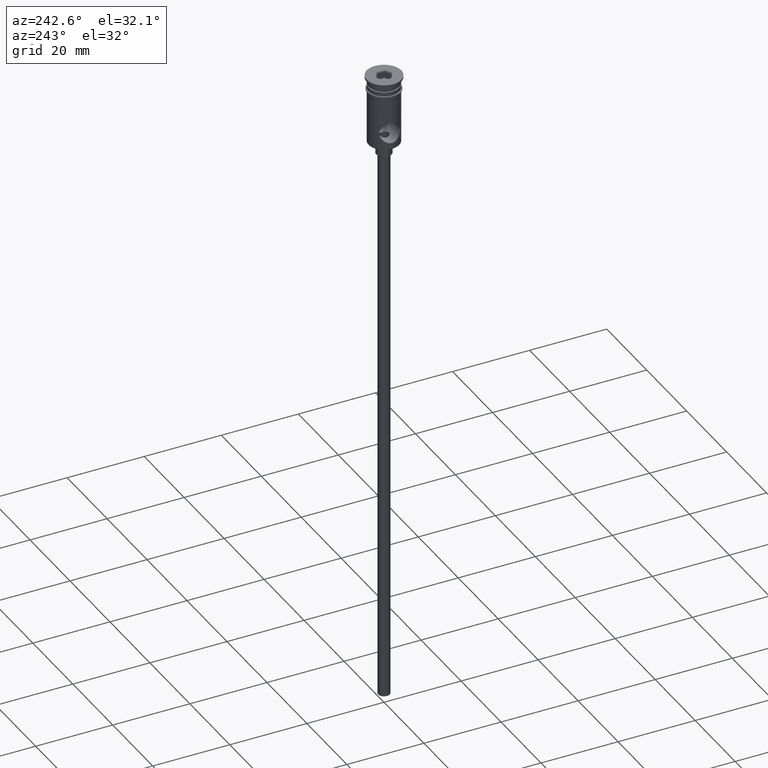
[diagram: clean part render]
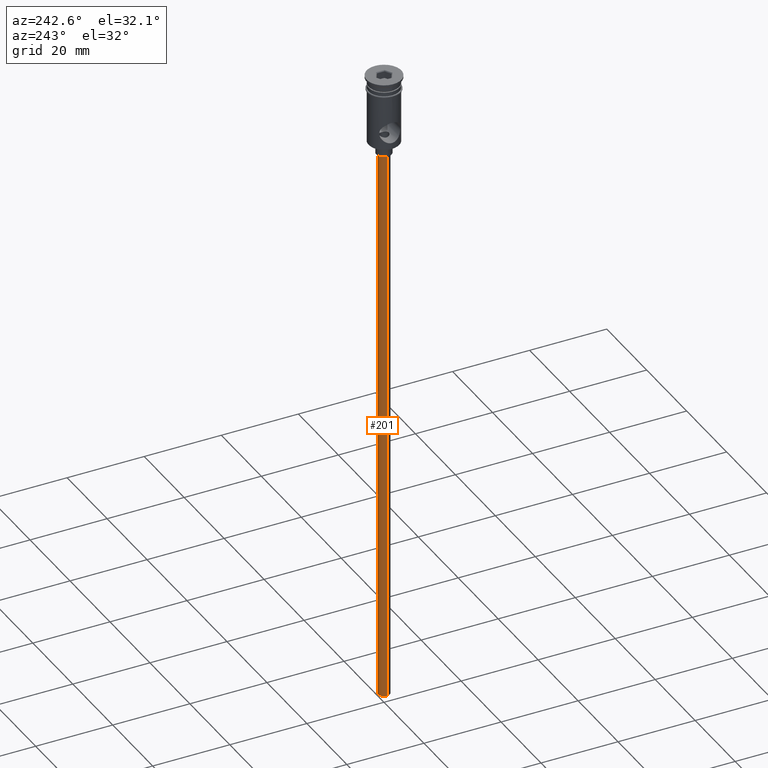
[diagram: same view with one face highlighted and labeled with its STEP entity id]
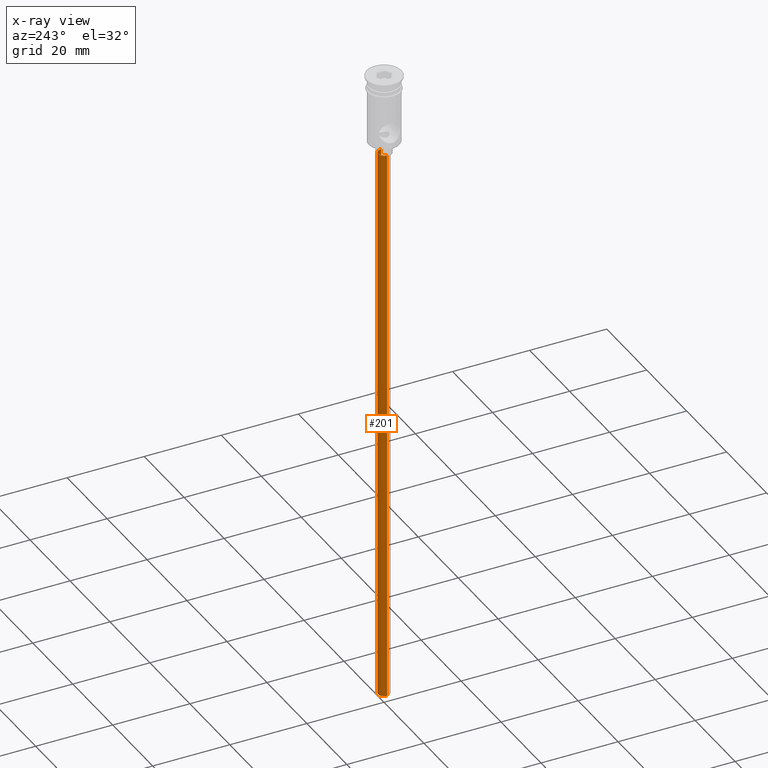
[diagram: x-ray of the same camera — body ghosted, the highlighted face saturated]
A machine part, auxiliary view. The second image highlights one B-rep face of the part: STEP entity #201.
The next image is the same camera in x-ray: the body ghosted, the highlighted face saturated — about 0% of this face is hidden behind the body in this view.
In plain terms, the highlighted cylindrical surface (edge-blend (fillet) strip) has radius 1.5 mm, axis along (-0, -0, 1).
Its self-contained STEP definition (entity closure, byte-faithful):
#18 = CARTESIAN_POINT ( 'NONE',  ( -1.500000000000000222, 1.836970198721030181E-16, -20.99999999999999645 ) ) ;
#38 = CIRCLE ( 'NONE', #852, 1.500000000000000222 ) ;
#42 = DIRECTION ( 'NONE',  ( -0.000000000000000000, -0.000000000000000000, 1.000000000000000000 ) ) ;
#87 = ORIENTED_EDGE ( 'NONE', *, *, #264, .T. ) ;
#176 = EDGE_CURVE ( 'NONE', #1388, #258, #931, .T. ) ;
#183 = AXIS2_PLACEMENT_3D ( 'NONE', #1309, #1303, #749 ) ;
#201 = ADVANCED_FACE ( 'NONE', ( #392 ), #1164, .T. ) ;
#218 = ORIENTED_EDGE ( 'NONE', *, *, #832, .F. ) ;
#258 = VERTEX_POINT ( 'NONE', #1412 ) ;
#264 = EDGE_CURVE ( 'NONE', #538, #843, #305, .T. ) ;
#305 = LINE ( 'NONE', #746, #1013 ) ;
#325 = DIRECTION ( 'NONE',  ( -1.000000000000000000, 0.000000000000000000, 0.000000000000000000 ) ) ;
#392 = FACE_OUTER_BOUND ( 'NONE', #424, .T. ) ;
#424 = EDGE_LOOP ( 'NONE', ( #218, #87, #1219, #864 ) ) ;
#507 = DIRECTION ( 'NONE',  ( -0.000000000000000000, -0.000000000000000000, 1.000000000000000000 ) ) ;
#538 = VERTEX_POINT ( 'NONE', #593 ) ;
#593 = CARTESIAN_POINT ( 'NONE',  ( -1.500000000000000222, 1.836970198721030181E-16, -167.9999999999999716 ) ) ;
#658 = DIRECTION ( 'NONE',  ( 0.000000000000000000, 0.000000000000000000, -1.000000000000000000 ) ) ;
#746 = CARTESIAN_POINT ( 'NONE',  ( -1.500000000000000222, 1.836970198721030181E-16, -167.9999999999999716 ) ) ;
#749 = DIRECTION ( 'NONE',  ( -1.000000000000000000, 0.000000000000000000, 0.000000000000000000 ) ) ;
#808 = VECTOR ( 'NONE', #42, 1000.000000000000000 ) ;
#832 = EDGE_CURVE ( 'NONE', #538, #1388, #38, .T. ) ;
#843 = VERTEX_POINT ( 'NONE', #18 ) ;
#852 = AXIS2_PLACEMENT_3D ( 'NONE', #1318, #658, #325 ) ;
#864 = ORIENTED_EDGE ( 'NONE', *, *, #176, .F. ) ;
#931 = LINE ( 'NONE', #1370, #808 ) ;
#954 = DIRECTION ( 'NONE',  ( 1.000000000000000000, 0.000000000000000000, 0.000000000000000000 ) ) ;
#960 = DIRECTION ( 'NONE',  ( -0.000000000000000000, -0.000000000000000000, 1.000000000000000000 ) ) ;
#1013 = VECTOR ( 'NONE', #960, 1000.000000000000000 ) ;
#1111 = CIRCLE ( 'NONE', #183, 1.500000000000000222 ) ;
#1164 = CYLINDRICAL_SURFACE ( 'NONE', #1272, 1.500000000000000222 ) ;
#1212 = EDGE_CURVE ( 'NONE', #843, #258, #1111, .T. ) ;
#1219 = ORIENTED_EDGE ( 'NONE', *, *, #1212, .T. ) ;
#1254 = CARTESIAN_POINT ( 'NONE',  ( 1.500000000000000222, 0.000000000000000000, -167.9999999999999716 ) ) ;
#1259 = CARTESIAN_POINT ( 'NONE',  ( 0.000000000000000000, 0.000000000000000000, -167.9999999999999716 ) ) ;
#1272 = AXIS2_PLACEMENT_3D ( 'NONE', #1259, #507, #954 ) ;
#1303 = DIRECTION ( 'NONE',  ( 0.000000000000000000, 0.000000000000000000, -1.000000000000000000 ) ) ;
#1309 = CARTESIAN_POINT ( 'NONE',  ( 0.000000000000000000, 0.000000000000000000, -20.99999999999999645 ) ) ;
#1318 = CARTESIAN_POINT ( 'NONE',  ( 0.000000000000000000, 0.000000000000000000, -167.9999999999999716 ) ) ;
#1370 = CARTESIAN_POINT ( 'NONE',  ( 1.500000000000000222, 0.000000000000000000, -167.9999999999999716 ) ) ;
#1388 = VERTEX_POINT ( 'NONE', #1254 ) ;
#1412 = CARTESIAN_POINT ( 'NONE',  ( 1.500000000000000222, 0.000000000000000000, -20.99999999999999645 ) ) ;